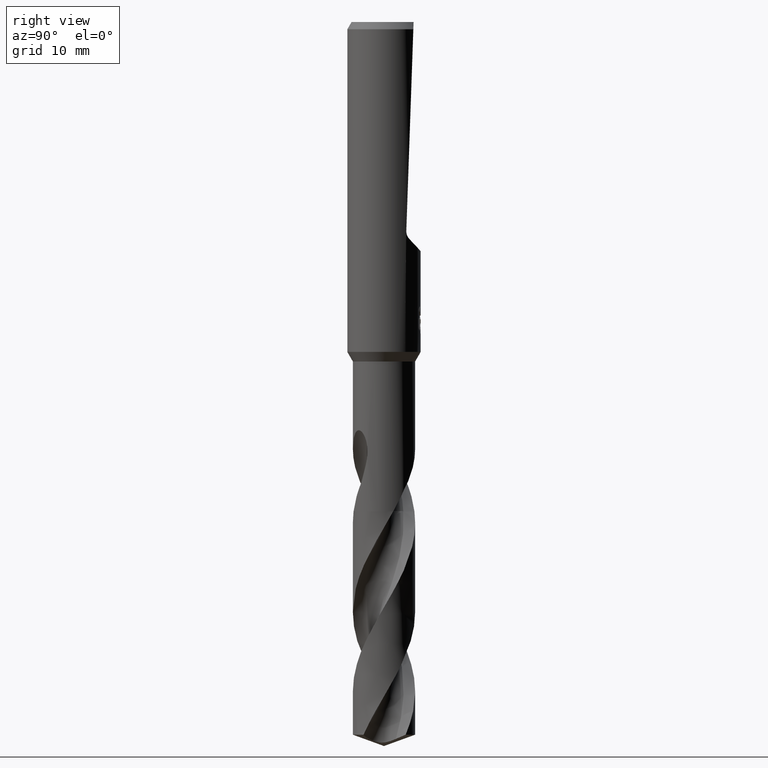
[diagram: clean part render]
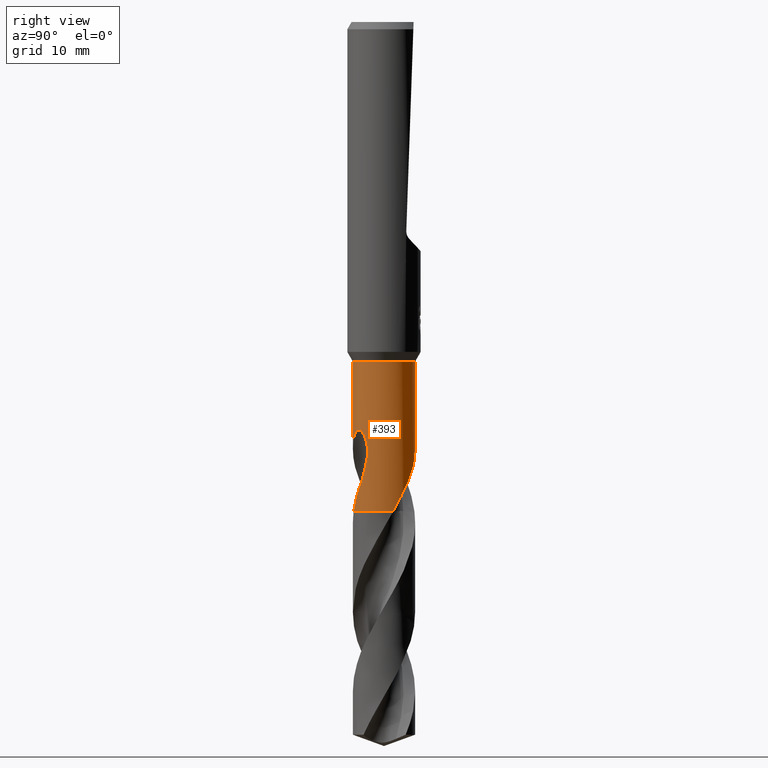
[diagram: same view with one face highlighted and labeled with its STEP entity id]
A machine part, right view. The second image highlights one B-rep face of the part: STEP entity #393.
In plain terms, the highlighted cylindrical surface (edge-blend (fillet) strip) has radius 3.4 mm, axis along (-0, -0, 1).
Its self-contained STEP definition (entity closure, byte-faithful):
#333=EDGE_CURVE('',#741,#365,#901,.T.);
#335=EDGE_CURVE('',#355,#429,#903,.T.);
#355=VERTEX_POINT('',#924);
#365=VERTEX_POINT('',#934);
#369=EDGE_CURVE('',#649,#807,#938,.T.);
#391=EDGE_CURVE('',#649,#431,#962,.T.);
#393=ADVANCED_FACE('',(#964),#965,.T.);
#429=VERTEX_POINT('',#1005);
#431=VERTEX_POINT('',#1007);
#483=VERTEX_POINT('',#1062);
#539=EDGE_CURVE('',#483,#807,#1124,.T.);
#611=EDGE_CURVE('',#741,#355,#1205,.T.);
#649=VERTEX_POINT('',#1247);
#681=VERTEX_POINT('',#1283);
#717=EDGE_CURVE('',#681,#365,#1322,.T.);
#719=EDGE_CURVE('',#431,#681,#1324,.T.);
#739=EDGE_CURVE('',#483,#429,#1347,.T.);
#741=VERTEX_POINT('',#1349);
#807=VERTEX_POINT('',#1418);
#901=CIRCLE('',#2025,3.4);
#903=B_SPLINE_CURVE_WITH_KNOTS('',3,(#2028,#2029,#2030,#2031,#2032,#2033,#2034,#2035,#2036,#2037,#2038,#2039,#2040,#2041,#2042,#2043,#2044,#2045,#2046,#2047,#2048,#2049,#2050,#2051,#2052,#2053,#2054,#2055,#2056,#2057),.UNSPECIFIED.,.F.,.F.,(4,2,2,2,2,2,2,2,2,2,2,2,2,2,4),(0.0,1.66581081618801,2.57538198284381,3.39922463163331,4.3563316644131,5.50603606565591,6.50250453754292,6.95406983602513,7.28410900291796,7.59642257408698,7.99261095682929,8.57225063008168,9.39627657859229,9.9355140699528,10.5022160513412),.UNSPECIFIED.);
#924=CARTESIAN_POINT('',(2.16653202131627,2.62033184932963,-50.1458));
#934=CARTESIAN_POINT('',(0.725404941957756,-3.32171456783741,-53.4));
#938=LINE('',#2251,#2252);
#962=B_SPLINE_CURVE_WITH_KNOTS('',3,(#2350,#2351,#2352,#2353,#2354,#2355,#2356,#2357,#2358,#2359,#2360,#2361,#2362,#2363,#2364,#2365,#2366,#2367,#2368,#2369,#2370,#2371,#2372,#2373,#2374,#2375,#2376,#2377,#2378,#2379),.UNSPECIFIED.,.F.,.F.,(4,2,2,2,2,2,2,2,2,2,2,2,2,2,4),(0.0,1.66581081618801,2.57538198284387,3.39922463163362,4.35633166441381,5.50603606565701,6.50250453754436,6.95406983602673,7.28410900291969,7.59642257408883,7.99261095683129,8.57225063008465,9.39627657859736,9.93551406995901,10.5022160513487),.UNSPECIFIED.);
#964=FACE_OUTER_BOUND('',#2381,.T.);
#965=CYLINDRICAL_SURFACE('',#2382,3.4);
#1005=CARTESIAN_POINT('',(-1.00940091246442E-012,3.4,-46.5316733365312));
#1007=CARTESIAN_POINT('',(2.76638335526979,-1.97664441204943,-48.2840272283296));
#1062=CARTESIAN_POINT('',(0.0,3.4,-37.0392304845413));
#1124=CIRCLE('',#5129,3.4);
#1205=B_SPLINE_CURVE_WITH_KNOTS('',3,(#6550,#6551,#6552,#6553,#6554,#6555,#6556,#6557,#6558,#6559),.UNSPECIFIED.,.F.,.F.,(4,2,2,2,4),(0.0,2.36493975634961,3.57995625107478,4.60664052599877,5.67075191219922),.UNSPECIFIED.);
#1247=CARTESIAN_POINT('',(1.00784660022994E-012,-3.4,-46.5316733365312));
#1283=CARTESIAN_POINT('',(2.36326296559546,-2.4443788895024,-50.1458));
#1322=B_SPLINE_CURVE_WITH_KNOTS('',3,(#7336,#7337,#7338,#7339,#7340,#7341,#7342,#7343),.UNSPECIFIED.,.F.,.F.,(4,2,2,4),(0.0,0.947984273702171,1.81982294630029,3.48973354865024),.UNSPECIFIED.);
#1324=B_SPLINE_CURVE_WITH_KNOTS('',3,(#7346,#7347,#7348,#7349),.UNSPECIFIED.,.F.,.F.,(4,4),(0.0,1.95404765813295),.UNSPECIFIED.);
#1347=LINE('',#7456,#7457);
#1349=CARTESIAN_POINT('',(3.24891197476421,1.00228288433642,-53.4));
#1418=CARTESIAN_POINT('',(4.16366160299608E-016,-3.4,-37.0392304845413));
#2025=AXIS2_PLACEMENT_3D('',#7895,#7896,#7897);
#2028=CARTESIAN_POINT('',(2.16653202131627,2.62033184932963,-50.1458));
#2029=CARTESIAN_POINT('',(1.94225558845237,2.80576716873413,-49.6728952537606));
#2030=CARTESIAN_POINT('',(1.68438846236629,2.97060629092394,-49.2319955277005));
#2031=CARTESIAN_POINT('',(1.23474505244582,3.1726511859917,-48.4954423272007));
#2032=CARTESIAN_POINT('',(1.07294229282164,3.2307718431806,-48.2362982378215));
#2033=CARTESIAN_POINT('',(0.759712595560196,3.31763517636331,-47.7346624420626));
#2034=CARTESIAN_POINT('',(0.609684227031162,3.34832378677009,-47.4945089460283));
#2035=CARTESIAN_POINT('',(0.284936006433007,3.39261502914497,-46.9769143878825));
#2036=CARTESIAN_POINT('',(0.107503536367132,3.40301339185717,-46.6954218542811));
#2037=CARTESIAN_POINT('',(-0.286528554076982,3.39472506541467,-46.0932164201103));
#2038=CARTESIAN_POINT('',(-0.520149767854264,3.36908944999134,-45.7505549410361));
#2039=CARTESIAN_POINT('',(-0.970658065603752,3.26556060133544,-45.1855298145945));
#2040=CARTESIAN_POINT('',(-1.21990627364216,3.1866847008025,-44.9098196767968));
#2041=CARTESIAN_POINT('',(-1.59714098553128,3.00436554359476,-44.6516449020489));
#2042=CARTESIAN_POINT('',(-1.72200816921724,2.93553586998242,-44.5878395851407));
#2043=CARTESIAN_POINT('',(-1.94080418022437,2.79381387883707,-44.5388256815358));
#2044=CARTESIAN_POINT('',(-2.03054470962009,2.7292726211895,-44.5379104860896));
#2045=CARTESIAN_POINT('',(-2.19769129141213,2.59633110522779,-44.5808079146424));
#2046=CARTESIAN_POINT('',(-2.27079286559114,2.53212300795835,-44.6210280509504));
#2047=CARTESIAN_POINT('',(-2.41955375718398,2.39141598006375,-44.7468722203606));
#2048=CARTESIAN_POINT('',(-2.48837727766392,2.31849806779405,-44.8397854953623));
#2049=CARTESIAN_POINT('',(-2.62935010019968,2.15927647283165,-45.0942108904487));
#2050=CARTESIAN_POINT('',(-2.69673230006867,2.07256892799047,-45.2829193452648));
#2051=CARTESIAN_POINT('',(-2.82344203164373,1.89846128057388,-45.8109046166205));
#2052=CARTESIAN_POINT('',(-2.86925052782047,1.82429980645187,-46.1869286540158));
#2053=CARTESIAN_POINT('',(-2.89192390001642,1.78803310251429,-46.8828572654925));
#2054=CARTESIAN_POINT('',(-2.8865927229109,1.79687269678933,-47.1600108688534));
#2055=CARTESIAN_POINT('',(-2.84893797129965,1.85602898352219,-47.7224942093305));
#2056=CARTESIAN_POINT('',(-2.81531674707296,1.90816040967855,-48.0057068005078));
#2057=CARTESIAN_POINT('',(-2.76638335526979,1.97664441204943,-48.2840272283296));
#2251=CARTESIAN_POINT('',(4.16366160299608E-016,-3.4,-45.2196152422707));
#2252=VECTOR('',#7907,1.0);
#2350=CARTESIAN_POINT('',(-2.16653202131627,-2.62033184932963,-50.1458));
#2351=CARTESIAN_POINT('',(-1.94225558845237,-2.80576716873413,-49.6728952537606));
#2352=CARTESIAN_POINT('',(-1.68438846236629,-2.97060629092394,-49.2319955277005));
#2353=CARTESIAN_POINT('',(-1.23474505244581,-3.17265118599171,-48.4954423272007));
#2354=CARTESIAN_POINT('',(-1.07294229282162,-3.23077184318061,-48.2362982378214));
#2355=CARTESIAN_POINT('',(-0.759712595560184,-3.31763517636331,-47.7346624420626));
#2356=CARTESIAN_POINT('',(-0.609684227031141,-3.34832378677009,-47.4945089460283));
#2357=CARTESIAN_POINT('',(-0.284936006433013,-3.39261502914496,-46.9769143878825));
#2358=CARTESIAN_POINT('',(-0.107503536367138,-3.40301339185717,-46.6954218542811));
#2359=CARTESIAN_POINT('',(0.286528554076962,-3.39472506541467,-46.0932164201103));
#2360=CARTESIAN_POINT('',(0.520149767854257,-3.36908944999135,-45.7505549410361));
#2361=CARTESIAN_POINT('',(0.97065806560375,-3.26556060133544,-45.1855298145945));
#2362=CARTESIAN_POINT('',(1.21990627364216,-3.1866847008025,-44.9098196767968));
#2363=CARTESIAN_POINT('',(1.59714098553128,-3.00436554359476,-44.6516449020489));
#2364=CARTESIAN_POINT('',(1.72200816921724,-2.93553586998242,-44.5878395851407));
#2365=CARTESIAN_POINT('',(1.94080418022437,-2.79381387883707,-44.5388256815358));
#2366=CARTESIAN_POINT('',(2.03054470962009,-2.72927262118951,-44.5379104860896));
#2367=CARTESIAN_POINT('',(2.19769129141213,-2.59633110522779,-44.5808079146424));
#2368=CARTESIAN_POINT('',(2.27079286559114,-2.53212300795835,-44.6210280509504));
#2369=CARTESIAN_POINT('',(2.41955375718397,-2.39141598006375,-44.7468722203606));
#2370=CARTESIAN_POINT('',(2.48837727766391,-2.31849806779405,-44.8397854953623));
#2371=CARTESIAN_POINT('',(2.62935010019979,-2.15927647283152,-45.0942108904489));
#2372=CARTESIAN_POINT('',(2.69673230006875,-2.07256892799037,-45.2829193452651));
#2373=CARTESIAN_POINT('',(2.82344203164369,-1.89846128057394,-45.8109046166203));
#2374=CARTESIAN_POINT('',(2.86925052782047,-1.82429980645188,-46.1869286540156));
#2375=CARTESIAN_POINT('',(2.89192390001642,-1.78803310251428,-46.8828572654925));
#2376=CARTESIAN_POINT('',(2.8865927229109,-1.79687269678934,-47.1600108688535));
#2377=CARTESIAN_POINT('',(2.84893797129965,-1.85602898352219,-47.7224942093305));
#2378=CARTESIAN_POINT('',(2.81531674707296,-1.90816040967854,-48.0057068005078));
#2379=CARTESIAN_POINT('',(2.76638335526979,-1.97664441204943,-48.2840272283296));
#2381=EDGE_LOOP('',(#7935,#7936,#7937,#7938,#7939,#7940,#7941,#7942,#7943));
#2382=AXIS2_PLACEMENT_3D('',#7944,#7945,#7946);
#5129=AXIS2_PLACEMENT_3D('',#8095,#8096,#8097);
#6550=CARTESIAN_POINT('',(3.24891197476422,1.0022828843364,-53.4));
#6551=CARTESIAN_POINT('',(3.1323427652455,1.38014337323908,-52.7180389646167));
#6552=CARTESIAN_POINT('',(2.97223287765142,1.66705819377304,-52.1867296231635));
#6553=CARTESIAN_POINT('',(2.78111216190754,1.95945678827011,-51.555129867987));
#6554=CARTESIAN_POINT('',(2.73483459307698,2.02348445747843,-51.3917249125968));
#6555=CARTESIAN_POINT('',(2.59993323058434,2.19321852704941,-50.9960896974978));
#6556=CARTESIAN_POINT('',(2.53719903876069,2.26639034176644,-50.8324328148256));
#6557=CARTESIAN_POINT('',(2.37111687316827,2.43982399527741,-50.4802512183253));
#6558=CARTESIAN_POINT('',(2.27541445625059,2.53030612151792,-50.3102415566193));
#6559=CARTESIAN_POINT('',(2.16653202131627,2.62033184932963,-50.1458));
#7336=CARTESIAN_POINT('',(2.36326296559546,-2.4443788895024,-50.1458));
#7337=CARTESIAN_POINT('',(2.2550499922903,-2.54900085024152,-50.4236432737359));
#7338=CARTESIAN_POINT('',(2.13897214884862,-2.64803559721435,-50.6949141887429));
#7339=CARTESIAN_POINT('',(1.88287466876905,-2.83511352316938,-51.2307490157181));
#7340=CARTESIAN_POINT('',(1.75330883634771,-2.91760113952388,-51.4864575245535));
#7341=CARTESIAN_POINT('',(1.33538885048611,-3.14227857348604,-52.3050151588424));
#7342=CARTESIAN_POINT('',(1.03492409571402,-3.25412094436977,-52.8547370774462));
#7343=CARTESIAN_POINT('',(0.72540494195776,-3.32171456783741,-53.4));
#7346=CARTESIAN_POINT('',(2.76638335532241,-1.97664441197579,-48.2840272283586));
#7347=CARTESIAN_POINT('',(2.65677015784704,-2.13005193595044,-48.907490847274));
#7348=CARTESIAN_POINT('',(2.52465695673196,-2.28834070583105,-49.5346646724017));
#7349=CARTESIAN_POINT('',(2.36326296559545,-2.4443788895024,-50.1458));
#7456=CARTESIAN_POINT('',(-4.16366160299608E-016,3.4,-45.2196152422707));
#7457=VECTOR('',#8364,1.0);
#7895=CARTESIAN_POINT('',(0.0,0.0,-53.4));
#7896=DIRECTION('',(0.0,0.0,-1.0));
#7897=DIRECTION('',(0.0,1.0,0.0));
#7907=DIRECTION('',(-0.0,-0.0,1.0));
#7935=ORIENTED_EDGE('',*,*,#739,.F.);
#7936=ORIENTED_EDGE('',*,*,#539,.T.);
#7937=ORIENTED_EDGE('',*,*,#369,.F.);
#7938=ORIENTED_EDGE('',*,*,#391,.T.);
#7939=ORIENTED_EDGE('',*,*,#719,.T.);
#7940=ORIENTED_EDGE('',*,*,#717,.T.);
#7941=ORIENTED_EDGE('',*,*,#333,.F.);
#7942=ORIENTED_EDGE('',*,*,#611,.T.);
#7943=ORIENTED_EDGE('',*,*,#335,.T.);
#7944=CARTESIAN_POINT('',(0.0,0.0,-45.2196152422707));
#7945=DIRECTION('',(-0.0,-0.0,1.0));
#7946=DIRECTION('',(0.0,1.0,0.0));
#8095=CARTESIAN_POINT('',(0.0,0.0,-37.0392304845413));
#8096=DIRECTION('',(0.0,0.0,-1.0));
#8097=DIRECTION('',(0.0,1.0,0.0));
#8364=DIRECTION('',(0.0,0.0,-1.0));